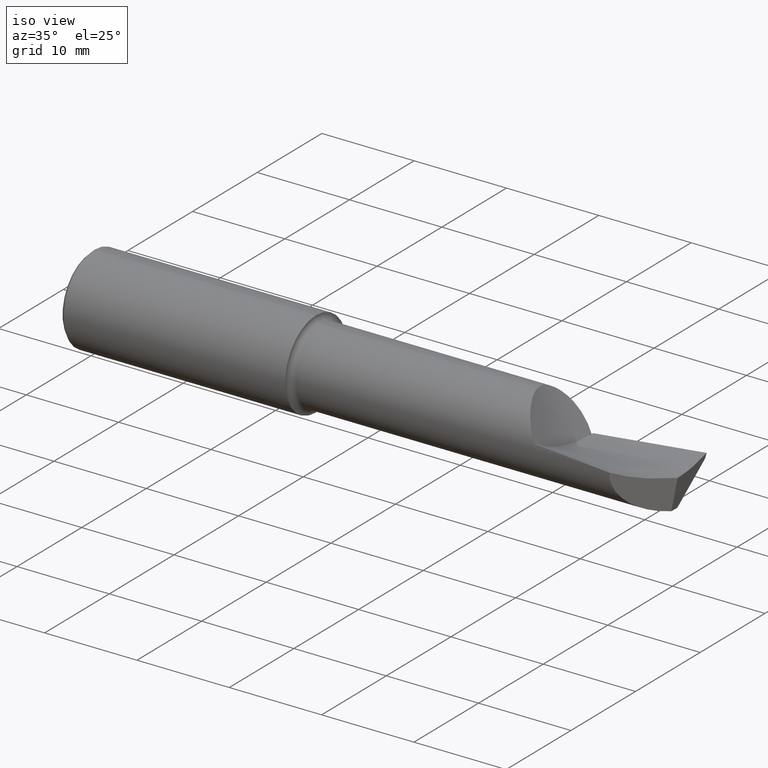
[diagram: clean part render]
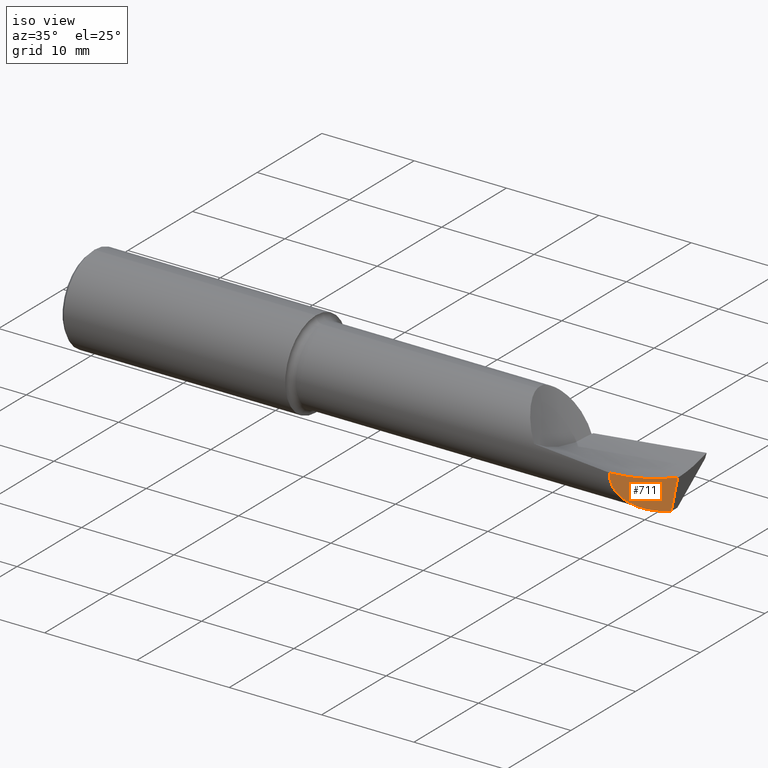
[diagram: same view with one face highlighted and labeled with its STEP entity id]
A machine part, iso view. The second image highlights one B-rep face of the part: STEP entity #711.
In plain terms, the highlighted planar face has unit normal (-0.7071, 0.7071, 0).
Its self-contained STEP definition (entity closure, byte-faithful):
#44 = EDGE_LOOP ( 'NONE', ( #252, #426, #800 ) ) ;
#45 = PLANE ( 'NONE',  #194 ) ;
#95 = LINE ( 'NONE', #493, #266 ) ;
#103 = CARTESIAN_POINT ( 'NONE',  ( 2.309327864376268913, -0.1739715317650081805, -0.2000000000000000111 ) ) ;
#105 = CARTESIAN_POINT ( 'NONE',  ( 2.323412058823201232, -0.1598873373180759727, 0.006003279548363496358 ) ) ;
#118 = CARTESIAN_POINT ( 'NONE',  ( 2.323412058823201232, -0.1598873373180759727, 0.006003279548363496358 ) ) ;
#131 = CARTESIAN_POINT ( 'NONE',  ( 2.351061791073665752, -0.1322376050676115078, -0.008107157670034536787 ) ) ;
#164 = FACE_OUTER_BOUND ( 'NONE', #44, .T. ) ;
#194 = AXIS2_PLACEMENT_3D ( 'NONE', #103, #318, #862 ) ;
#197 = CARTESIAN_POINT ( 'NONE',  ( 2.465082417912259238, -0.01821697822901855585, -0.03424927294712318965 ) ) ;
#240 = CARTESIAN_POINT ( 'NONE',  ( 2.319870034274885917, -0.1634293618663911207, -0.08833263620950590478 ) ) ;
#252 = ORIENTED_EDGE ( 'NONE', *, *, #443, .T. ) ;
#266 = VECTOR ( 'NONE', #566, 39.37007874015748854 ) ;
#309 = CARTESIAN_POINT ( 'NONE',  ( 2.384384738279100802, -0.09891465786217680523, -0.1572504416521150195 ) ) ;
#318 = DIRECTION ( 'NONE',  ( -0.7071067811865463515, 0.7071067811865487940, 0.000000000000000000 ) ) ;
#333 = CARTESIAN_POINT ( 'NONE',  ( 2.436173526948572032, -0.04712586919270571328, -0.03128886985532088050 ) ) ;
#341 = EDGE_CURVE ( 'NONE', #567, #646, #95, .T. ) ;
#407 = VERTEX_POINT ( 'NONE', #105 ) ;
#412 = CARTESIAN_POINT ( 'NONE',  ( 2.494407449520328779, 0.01110805337905102289, -0.03352468991477909610 ) ) ;
#426 = ORIENTED_EDGE ( 'NONE', *, *, #341, .T. ) ;
#443 = EDGE_CURVE ( 'NONE', #407, #567, #610, .T. ) ;
#493 = CARTESIAN_POINT ( 'NONE',  ( 2.468889537603180084, -0.01440985853809771157, -0.2395298840817430275 ) ) ;
#549 = B_SPLINE_CURVE_WITH_KNOTS ( 'NONE', 3,
 ( #412, #197, #333, #618, #131, #118 ),
 .UNSPECIFIED., .F., .F.,
 ( 4, 2, 4 ),
 ( 0.0001976420098985557055, 0.003309543841853181210, 0.006421445673807806877 ),
 .UNSPECIFIED. ) ;
#566 = DIRECTION ( 'NONE',  ( 0.1220122463319275735, 0.1220122463319271433, 0.9850005195379716305 ) ) ;
#567 = VERTEX_POINT ( 'NONE', #749 ) ;
#610 =( BOUNDED_CURVE ( )  B_SPLINE_CURVE ( 3, ( #729, #240, #309, #726 ),
 .UNSPECIFIED., .F., .T. ) 
 B_SPLINE_CURVE_WITH_KNOTS ( ( 4, 4 ),
 ( 6.245656000938134333, 7.825537448469403579 ),
 .UNSPECIFIED. ) 
 CURVE ( )  GEOMETRIC_REPRESENTATION_ITEM ( )  RATIONAL_B_SPLINE_CURVE ( ( 1.000000000000000000, 0.8025916143218190246, 0.8025916143218190246, 1.000000000000000000 ) ) 
 REPRESENTATION_ITEM ( '' )  );
#618 = CARTESIAN_POINT ( 'NONE',  ( 2.379163599928374673, -0.1041357962129026149, -0.01821439059637124450 ) ) ;
#646 = VERTEX_POINT ( 'NONE', #695 ) ;
#695 = CARTESIAN_POINT ( 'NONE',  ( 2.494407449520328779, 0.01110805337905102289, -0.03352468991477909610 ) ) ;
#711 = ADVANCED_FACE ( 'NONE', ( #164 ), #45, .F. ) ;
#726 = CARTESIAN_POINT ( 'NONE',  ( 2.478748940125911737, -0.004550456015366202700, -0.1599352786287386308 ) ) ;
#729 = CARTESIAN_POINT ( 'NONE',  ( 2.323412058823201232, -0.1598873373180759727, 0.006003279548363496358 ) ) ;
#749 = CARTESIAN_POINT ( 'NONE',  ( 2.478748940125911737, -0.004550456015366202700, -0.1599352786287386308 ) ) ;
#764 = EDGE_CURVE ( 'NONE', #646, #407, #549, .T. ) ;
#800 = ORIENTED_EDGE ( 'NONE', *, *, #764, .T. ) ;
#862 = DIRECTION ( 'NONE',  ( -0.7071067811865486830, -0.7071067811865462405, 0.000000000000000000 ) ) ;